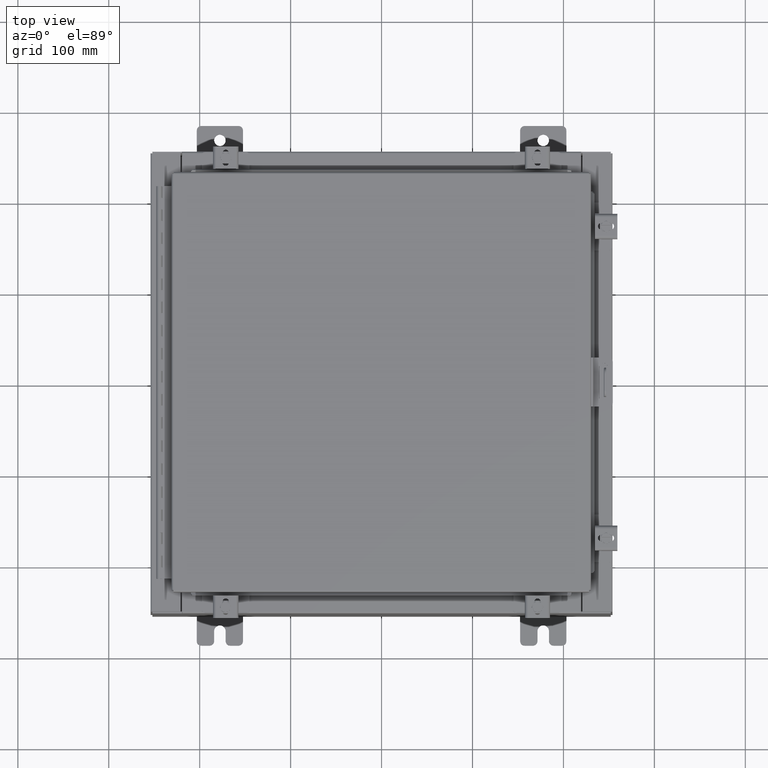
[diagram: clean part render]
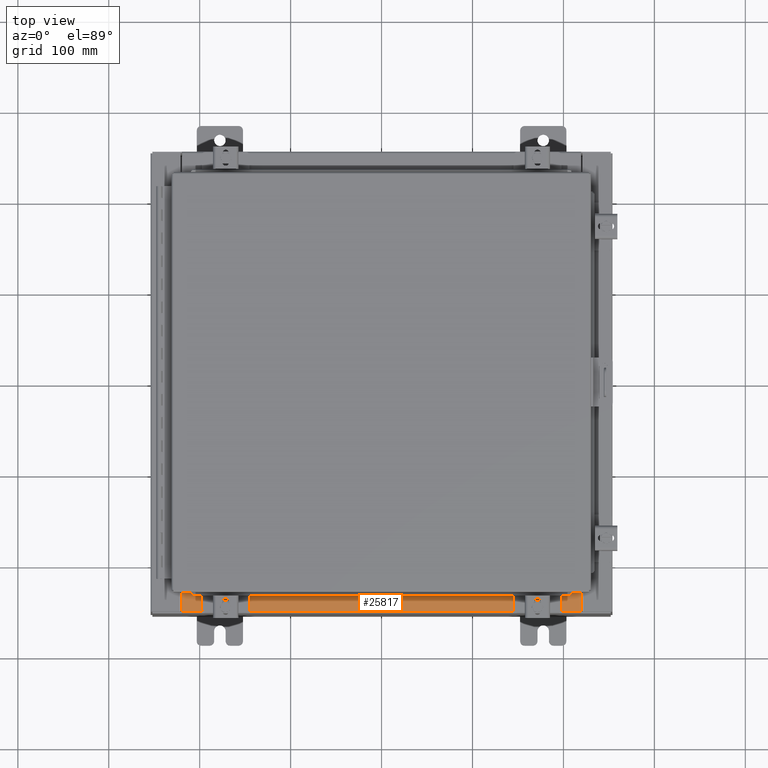
[diagram: same view with one face highlighted and labeled with its STEP entity id]
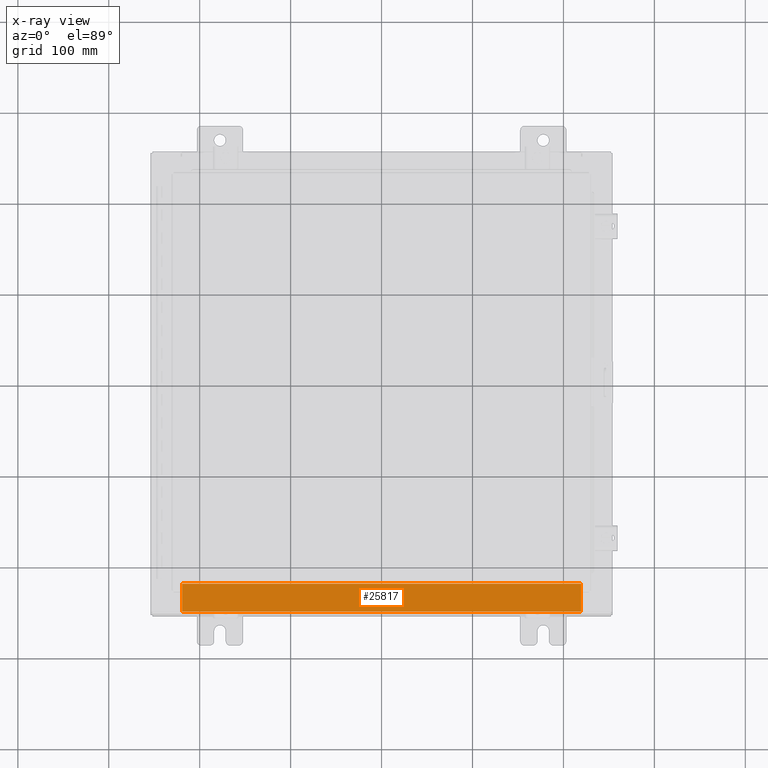
[diagram: x-ray of the same camera — body ghosted, the highlighted face saturated]
A machine part, top view. The second image highlights one B-rep face of the part: STEP entity #25817.
The next image is the same camera in x-ray: the body ghosted, the highlighted face saturated — about 0% of this face is hidden behind the body in this view.
In plain terms, the highlighted planar face has unit normal (-0, -0, 1).
Its self-contained STEP definition (entity closure, byte-faithful):
#419 = VERTEX_POINT ( 'NONE', #1316 ) ;
#828 = CARTESIAN_POINT ( 'NONE',  ( 8.637200000000000000, -1.300299999999999800, 4.000000000000004400 ) ) ;
#945 = VERTEX_POINT ( 'NONE', #2137 ) ;
#1270 = DIRECTION ( 'NONE',  ( -1.000000000000000000, 3.162886113166609200E-017, -1.128005754888089100E-031 ) ) ;
#1316 = CARTESIAN_POINT ( 'NONE',  ( 8.637200000000000000, -0.08769999999999965300, 4.000000000000000000 ) ) ;
#2046 = DIRECTION ( 'NONE',  ( 0.0000000000000000000, -1.000000000000000000, 3.566381192773190000E-015 ) ) ;
#2137 = CARTESIAN_POINT ( 'NONE',  ( -8.637200000000000000, -1.287299999999999200, 4.000000000000004400 ) ) ;
#3247 = ORIENTED_EDGE ( 'NONE', *, *, #5272, .T. ) ;
#3497 = VERTEX_POINT ( 'NONE', #11989 ) ;
#3529 = ORIENTED_EDGE ( 'NONE', *, *, #11772, .F. ) ;
#5272 = EDGE_CURVE ( 'NONE', #419, #8698, #12285, .T. ) ;
#6207 = VECTOR ( 'NONE', #1270, 39.37007874015748100 ) ;
#6999 = VECTOR ( 'NONE', #8613, 39.37007874015748100 ) ;
#8613 = DIRECTION ( 'NONE',  ( -1.000000000000000000, 0.0000000000000000000, 0.0000000000000000000 ) ) ;
#8698 = VERTEX_POINT ( 'NONE', #27651 ) ;
#9372 = LINE ( 'NONE', #21095, #26775 ) ;
#10031 = DIRECTION ( 'NONE',  ( -0.0000000000000000000, -1.000000000000000000, 3.566381192773190000E-015 ) ) ;
#10336 = ORIENTED_EDGE ( 'NONE', *, *, #27047, .F. ) ;
#11772 = EDGE_CURVE ( 'NONE', #3497, #945, #13046, .T. ) ;
#11989 = CARTESIAN_POINT ( 'NONE',  ( 8.637200000000000000, -1.287299999999999900, 4.000000000000004400 ) ) ;
#12285 = LINE ( 'NONE', #23950, #6207 ) ;
#13046 = LINE ( 'NONE', #17651, #6999 ) ;
#13062 = EDGE_LOOP ( 'NONE', ( #16426, #3529, #10336, #3247 ) ) ;
#15687 = DIRECTION ( 'NONE',  ( 0.0000000000000000000, 3.566381192773190000E-015, 1.000000000000000000 ) ) ;
#16426 = ORIENTED_EDGE ( 'NONE', *, *, #20666, .F. ) ;
#16822 = VECTOR ( 'NONE', #10031, 39.37007874015748100 ) ;
#17651 = CARTESIAN_POINT ( 'NONE',  ( 8.637200000000000000, -1.287299999999999900, 4.000000000000003600 ) ) ;
#17939 = FACE_OUTER_BOUND ( 'NONE', #13062, .T. ) ;
#19611 = AXIS2_PLACEMENT_3D ( 'NONE', #22347, #15687, #2046 ) ;
#20666 = EDGE_CURVE ( 'NONE', #945, #8698, #9372, .T. ) ;
#21095 = CARTESIAN_POINT ( 'NONE',  ( -8.637200000000000000, -0.07469999999999973900, 4.000000000000000000 ) ) ;
#22347 = CARTESIAN_POINT ( 'NONE',  ( 0.0000000000000000000, 1.425992975200418500E-014, 4.000000000000000000 ) ) ;
#22860 = LINE ( 'NONE', #828, #16822 ) ;
#23377 = DIRECTION ( 'NONE',  ( -0.0000000000000000000, 1.000000000000000000, -3.566381192773190000E-015 ) ) ;
#23950 = CARTESIAN_POINT ( 'NONE',  ( -2.773851121247567100E-018, -0.08770000000000000000, 4.000000000000000900 ) ) ;
#25817 = ADVANCED_FACE ( 'NONE', ( #17939 ), #29302, .T. ) ;
#26775 = VECTOR ( 'NONE', #23377, 39.37007874015748100 ) ;
#27047 = EDGE_CURVE ( 'NONE', #419, #3497, #22860, .T. ) ;
#27651 = CARTESIAN_POINT ( 'NONE',  ( -8.637200000000000000, -0.08770000000000000000, 4.000000000000000000 ) ) ;
#29302 = PLANE ( 'NONE',  #19611 ) ;